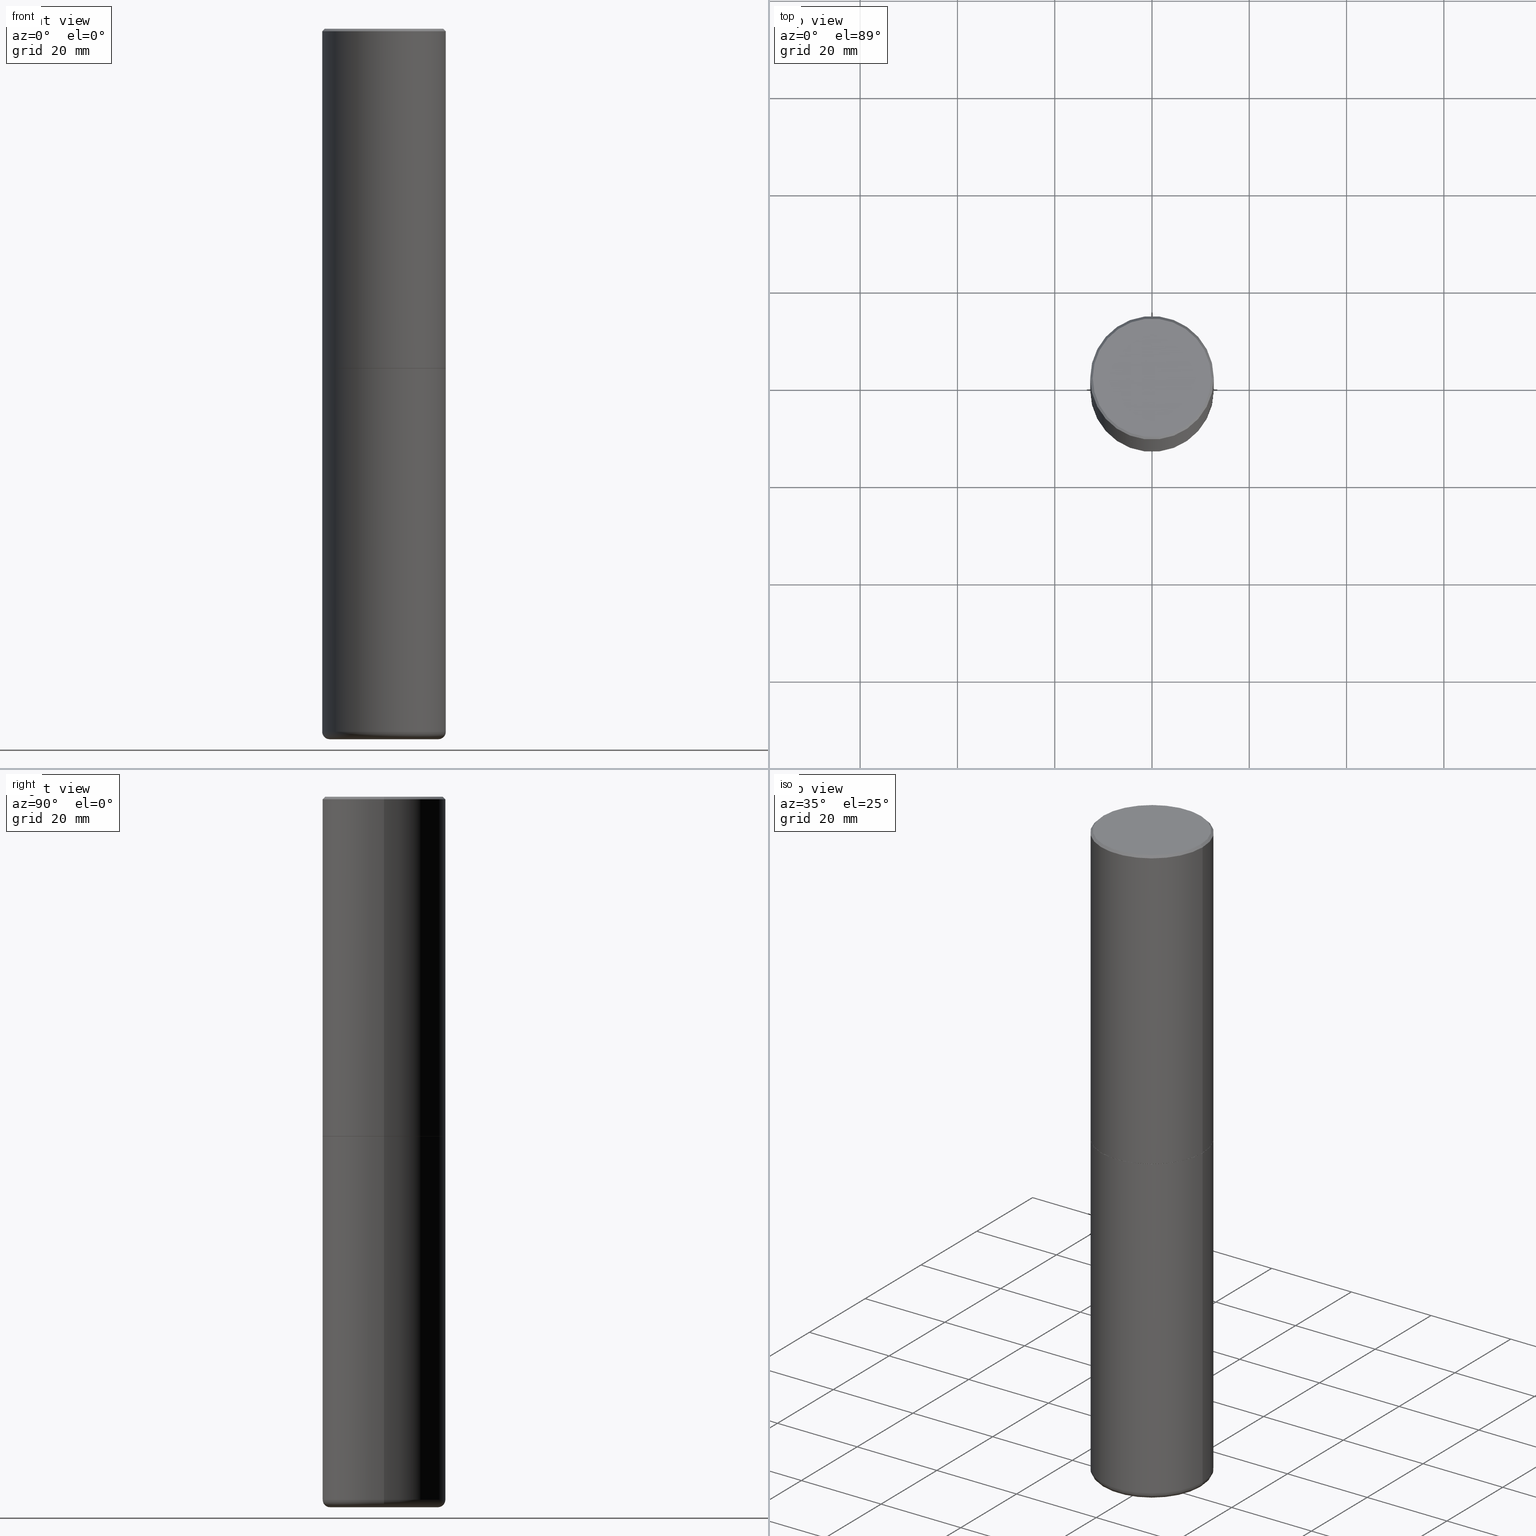
[diagram: canonical four-view strip — front | top / right | iso, engineering-drawing reading convention]
A machine part, canonical four-view strip (front | top / right | iso — engineering-drawing reading convention). The complete STEP part file that produces these views, byte-faithful:
ISO-10303-21;
HEADER;
FILE_DESCRIPTION (( 'STEP AP203' ),
    '1' );
FILE_NAME ('77485.STEP',
    '2024-05-02T19:48:35',
    ( '' ),
    ( '' ),
    'SwSTEP 2.0',
    'SolidWorks 2023',
    '' );
FILE_SCHEMA (( 'CONFIG_CONTROL_DESIGN' ));
ENDSEC;

DATA;
#1 = CARTESIAN_POINT ( 'NONE',  ( 4.890937612370299433E-31, -6.982962677686328587E-17, -0.02000000000000010797 ) ) ;
#2 = EDGE_CURVE ( 'NONE', #217, #63, #147, .T. ) ;
#3 = CYLINDRICAL_SURFACE ( 'NONE', #231, 0.5000000000000001110 ) ;
#4 = CIRCLE ( 'NONE', #146, 0.4800000000000000933 ) ;
#5 = TOROIDAL_SURFACE ( 'NONE', #239, 0.4400000000000000022, 0.06000000000000045575 ) ;
#6 = ORIENTED_EDGE ( 'NONE', *, *, #247, .F. ) ;
#7 = EDGE_LOOP ( 'NONE', ( #360, #366 ) ) ;
#8 = FACE_OUTER_BOUND ( 'NONE', #131, .T. ) ;
#9 = EDGE_CURVE ( 'NONE', #374, #42, #344, .T. ) ;
#10 = AXIS2_PLACEMENT_3D ( 'NONE', #195, #376, #229 ) ;
#11 = LOCAL_TIME ( 15, 48, 35.00000000000000000, #187 ) ;
#12 = VECTOR ( 'NONE', #33, 39.37007874015748143 ) ;
#13 = APPROVAL_ROLE ( '' ) ;
#14 = CARTESIAN_POINT ( 'NONE',  ( -0.5000000000000001110, 3.552713678800501718E-15, -2.459467545127453732E-29 ) ) ;
#15 = CARTESIAN_POINT ( 'NONE',  ( 6.725039217009123399E-29, -9.601573681818648281E-15, -2.749999999999999556 ) ) ;
#16 = ADVANCED_FACE ( 'NONE', ( #412 ), #334, .T. ) ;
#17 = EDGE_LOOP ( 'NONE', ( #150, #165, #23, #263 ) ) ;
#18 = LINE ( 'NONE', #14, #53 ) ;
#19 = PERSON_AND_ORGANIZATION ( #185, #201 ) ;
#20 = FACE_OUTER_BOUND ( 'NONE', #254, .T. ) ;
#21 = SECURITY_CLASSIFICATION_LEVEL ( 'unclassified' ) ;
#22 = PRODUCT_DEFINITION_SHAPE ( 'NONE', 'NONE',  #109 ) ;
#23 = ORIENTED_EDGE ( 'NONE', *, *, #233, .T. ) ;
#24 = PERSON_AND_ORGANIZATION ( #185, #201 ) ;
#25 = ORIENTED_EDGE ( 'NONE', *, *, #347, .F. ) ;
#26 = CARTESIAN_POINT ( 'NONE',  ( 6.725039217009123399E-29, -9.601573681818648281E-15, -2.749999999999999556 ) ) ;
#27 = DIRECTION ( 'NONE',  ( 1.000000000000000000, -6.982962677686266711E-15, 4.874852205035275907E-29 ) ) ;
#28 = CIRCLE ( 'NONE', #373, 0.5000000000000000000 ) ;
#29 = DIRECTION ( 'NONE',  ( 1.000000000000000000, -6.982962677686262766E-15, 0.000000000000000000 ) ) ;
#30 = VECTOR ( 'NONE', #170, 39.37007874015748143 ) ;
#31 = EDGE_CURVE ( 'NONE', #272, #63, #97, .T. ) ;
#32 = CARTESIAN_POINT ( 'NONE',  ( 0.5000000000000001110, -3.491481338843134539E-15, 2.438088387897968457E-29 ) ) ;
#33 = DIRECTION ( 'NONE',  ( -2.445468806185136877E-29, 3.491481338843145188E-15, 1.000000000000000000 ) ) ;
#34 = DIRECTION ( 'NONE',  ( -2.445468806185136597E-29, 3.491481338843145583E-15, 1.000000000000000000 ) ) ;
#35 = AXIS2_PLACEMENT_3D ( 'NONE', #48, #98, #232 ) ;
#36 = CC_DESIGN_APPROVAL ( #191, ( #258 ) ) ;
#37 = AXIS2_PLACEMENT_3D ( 'NONE', #15, #274, #306 ) ;
#38 = ORIENTED_EDGE ( 'NONE', *, *, #121, .F. ) ;
#39 = APPLICATION_PROTOCOL_DEFINITION ( 'international standard', 'config_control_design', 1994, #174 ) ;
#40 = UNCERTAINTY_MEASURE_WITH_UNIT (LENGTH_MEASURE( 1.000000000000000082E-05 ), #358, 'distance_accuracy_value', 'NONE');
#41 = DIRECTION ( 'NONE',  ( 1.000000000000000000, -6.982962677686266711E-15, 4.876176775795935793E-29 ) ) ;
#42 = VERTEX_POINT ( 'NONE', #392 ) ;
#43 = PERSON_AND_ORGANIZATION ( #185, #201 ) ;
#44 = AXIS2_PLACEMENT_3D ( 'NONE', #172, #176, #210 ) ;
#45 = DIRECTION ( 'NONE',  ( -2.445468806185136597E-29, 3.491481338843145583E-15, 1.000000000000000000 ) ) ;
#46 = DIRECTION ( 'NONE',  ( 0.7071067811865461294, -7.319954787623251312E-15, -0.7071067811865489050 ) ) ;
#47 = ADVANCED_FACE ( 'NONE', ( #120 ), #5, .T. ) ;
#48 = CARTESIAN_POINT ( 'NONE',  ( 1.391471750719342616E-28, -1.986652881801749632E-14, -5.689999999999999503 ) ) ;
#49 = VERTEX_POINT ( 'NONE', #342 ) ;
#50 = APPROVAL_ROLE ( '' ) ;
#51 = ORIENTED_EDGE ( 'NONE', *, *, #126, .T. ) ;
#52 = ADVANCED_BREP_SHAPE_REPRESENTATION ( '77485', ( #399, #122, #293 ), #209 ) ;
#53 = VECTOR ( 'NONE', #113, 39.37007874015748143 ) ;
#54 = ADVANCED_FACE ( 'NONE', ( #79 ), #111, .T. ) ;
#55 = APPROVAL_PERSON_ORGANIZATION ( #408, #191, #371 ) ;
#56 = DIRECTION ( 'NONE',  ( 1.000000000000000000, -6.982962677686266711E-15, 0.000000000000000000 ) ) ;
#57 = CLOSED_SHELL ( 'NONE', ( #16, #171, #228, #300, #54, #326, #264, #134 ) ) ;
#58 = APPLICATION_CONTEXT ( 'configuration controlled 3d designs of mechanical parts and assemblies' ) ;
#59 = APPROVAL_DATE_TIME ( #240, #316 ) ;
#60 = AXIS2_PLACEMENT_3D ( 'NONE', #353, #320, #29 ) ;
#61 = CIRCLE ( 'NONE', #294, 0.06000000000000045575 ) ;
#62 = DIRECTION ( 'NONE',  ( 1.000000000000000000, -6.982962677686266711E-15, 4.876176775795935793E-29 ) ) ;
#63 = VERTEX_POINT ( 'NONE', #296 ) ;
#64 = DIRECTION ( 'NONE',  ( 2.445468806185136597E-29, -3.491481338843145583E-15, -1.000000000000000000 ) ) ;
#65 = DIRECTION ( 'NONE',  ( -1.000000000000000000, 6.982962677686266711E-15, 0.000000000000000000 ) ) ;
#66 = VECTOR ( 'NONE', #332, 39.37007874015748143 ) ;
#67 = LINE ( 'NONE', #302, #66 ) ;
#68 = LOCAL_TIME ( 15, 48, 35.00000000000000000, #144 ) ;
#69 = PLANE ( 'NONE',  #200 ) ;
#70 = CARTESIAN_POINT ( 'NONE',  ( 0.4400000000000000022, -2.314852127653004609E-14, -5.750000000000000888 ) ) ;
#71 = ORIENTED_EDGE ( 'NONE', *, *, #389, .T. ) ;
#72 = EDGE_LOOP ( 'NONE', ( #205, #404, #346, #367 ) ) ;
#73 = CARTESIAN_POINT ( 'NONE',  ( 0.000000000000000000, 0.000000000000000000, 0.000000000000000000 ) ) ;
#74 = ADVANCED_FACE ( 'NONE', ( #266 ), #137, .T. ) ;
#75 = EDGE_LOOP ( 'NONE', ( #310, #253, #330, #250 ) ) ;
#76 = DIRECTION ( 'NONE',  ( 1.000000000000000000, -6.982962677686262766E-15, 0.000000000000000000 ) ) ;
#77 = CALENDAR_DATE ( 2024, 2, 5 ) ;
#78 = PERSON_AND_ORGANIZATION ( #185, #201 ) ;
#79 = FACE_OUTER_BOUND ( 'NONE', #108, .T. ) ;
#80 = ORIENTED_EDGE ( 'NONE', *, *, #2, .T. ) ;
#81 = AXIS2_PLACEMENT_3D ( 'NONE', #197, #248, #62 ) ;
#82 = ORIENTED_EDGE ( 'NONE', *, *, #242, .F. ) ;
#83 = ORIENTED_EDGE ( 'NONE', *, *, #100, .F. ) ;
#84 = DATE_AND_TIME ( #405, #88 ) ;
#85 = VERTEX_POINT ( 'NONE', #307 ) ;
#86 = AXIS2_PLACEMENT_3D ( 'NONE', #384, #382, #129 ) ;
#87 = CC_DESIGN_SECURITY_CLASSIFICATION ( #258, ( #322 ) ) ;
#88 = LOCAL_TIME ( 15, 48, 35.00000000000000000, #116 ) ;
#89 = DIRECTION ( 'NONE',  ( -2.445468806185136597E-29, 3.491481338843145583E-15, 1.000000000000000000 ) ) ;
#90 = CC_DESIGN_APPROVAL ( #208, ( #109 ) ) ;
#91 = LOCAL_TIME ( 15, 48, 35.00000000000000000, #397 ) ;
#92 = CARTESIAN_POINT ( 'NONE',  ( 1.391471750719342616E-28, -1.986652881801749632E-14, -5.689999999999999503 ) ) ;
#93 = CARTESIAN_POINT ( 'NONE',  ( 2.609628535838049452E-45, -3.725857925951117973E-31, -1.067128122525102851E-16 ) ) ;
#94 = EDGE_CURVE ( 'NONE', #141, #261, #61, .T. ) ;
#95 = CYLINDRICAL_SURFACE ( 'NONE', #81, 0.5000000000000000000 ) ;
#96 = FACE_OUTER_BOUND ( 'NONE', #308, .T. ) ;
#97 = CIRCLE ( 'NONE', #148, 0.5000000000000000000 ) ;
#98 = DIRECTION ( 'NONE',  ( -2.445468806185136597E-29, 3.491481338843145583E-15, 1.000000000000000000 ) ) ;
#99 = EDGE_LOOP ( 'NONE', ( #178, #234, #305, #161 ) ) ;
#100 = EDGE_CURVE ( 'NONE', #261, #169, #136, .T. ) ;
#101 = DIRECTION ( 'NONE',  ( -2.445468806185136597E-29, 3.491481338843145583E-15, 1.000000000000000000 ) ) ;
#102 = ORIENTED_EDGE ( 'NONE', *, *, #289, .T. ) ;
#103 = CIRCLE ( 'NONE', #60, 0.4400000000000000022 ) ;
#104 = DIRECTION ( 'NONE',  ( 1.000000000000000000, -6.982962677686269077E-15, 0.000000000000000000 ) ) ;
#105 = CARTESIAN_POINT ( 'NONE',  ( 4.089694968291764333E-29, -3.435613221068401065E-14, -5.750000000000000888 ) ) ;
#106 = ORIENTED_EDGE ( 'NONE', *, *, #414, .T. ) ;
#107 = LINE ( 'NONE', #212, #400 ) ;
#108 = EDGE_LOOP ( 'NONE', ( #380, #273, #411, #230 ) ) ;
#109 = PRODUCT_DEFINITION ( 'UNKNOWN', '', #322, #215 ) ;
#110 = APPROVAL_DATE_TIME ( #339, #191 ) ;
#111 = CYLINDRICAL_SURFACE ( 'NONE', #350, 0.5000000000000001110 ) ;
#112 = CIRCLE ( 'NONE', #157, 0.5000000000000003331 ) ;
#113 = DIRECTION ( 'NONE',  ( -2.445468806185136877E-29, 3.491481338843145188E-15, 1.000000000000000000 ) ) ;
#114 = VECTOR ( 'NONE', #393, 39.37007874015748143 ) ;
#115 = CARTESIAN_POINT ( 'NONE',  ( 4.890937612370299433E-31, -6.982962677686328587E-17, -0.02000000000000010797 ) ) ;
#116 = COORDINATED_UNIVERSAL_TIME_OFFSET ( 5, 0, .BEHIND. ) ;
#117 = EDGE_CURVE ( 'NONE', #188, #272, #107, .T. ) ;
#118 = PERSON_AND_ORGANIZATION ( #185, #201 ) ;
#119 = TOROIDAL_SURFACE ( 'NONE', #35, 0.4400000000000000022, 0.06000000000000045575 ) ;
#120 = FACE_OUTER_BOUND ( 'NONE', #72, .T. ) ;
#121 = EDGE_CURVE ( 'NONE', #85, #169, #223, .T. ) ;
#122 = MANIFOLD_SOLID_BREP ( 'Body-Move/Copy2[2]', #57 ) ;
#123 = DIRECTION ( 'NONE',  ( -2.445468806185136597E-29, 3.491481338843145583E-15, 1.000000000000000000 ) ) ;
#124 = DIRECTION ( 'NONE',  ( 1.000000000000000000, -6.982962677686265922E-15, 0.000000000000000000 ) ) ;
#125 = VECTOR ( 'NONE', #285, 39.37007874015748143 ) ;
#126 = EDGE_CURVE ( 'NONE', #313, #63, #18, .T. ) ;
#127 = FACE_OUTER_BOUND ( 'NONE', #17, .T. ) ;
#128 = FACE_OUTER_BOUND ( 'NONE', #99, .T. ) ;
#129 = DIRECTION ( 'NONE',  ( 1.000000000000000000, -6.982962677686265922E-15, 4.876176775795935793E-29 ) ) ;
#130 = DIRECTION ( 'NONE',  ( -2.445468806185136597E-29, 3.491481338843145583E-15, 1.000000000000000000 ) ) ;
#131 = EDGE_LOOP ( 'NONE', ( #106, #278, #38, #167 ) ) ;
#132 = CARTESIAN_POINT ( 'NONE',  ( 0.000000000000000000, 0.000000000000000000, 0.000000000000000000 ) ) ;
#133 = AXIS2_PLACEMENT_3D ( 'NONE', #93, #317, #27 ) ;
#134 = ADVANCED_FACE ( 'NONE', ( #20 ), #394, .F. ) ;
#135 = CARTESIAN_POINT ( 'NONE',  ( 6.725039217009123399E-29, -9.601573681818648281E-15, -2.749999999999999556 ) ) ;
#136 = LINE ( 'NONE', #270, #114 ) ;
#137 = PLANE ( 'NONE',  #194 ) ;
#138 = AXIS2_PLACEMENT_3D ( 'NONE', #301, #370, #318 ) ;
#139 = DIRECTION ( 'NONE',  ( 2.438088387897960049E-29, -3.491481338843145188E-15, -1.000000000000000000 ) ) ;
#140 = DIRECTION ( 'NONE',  ( 1.000000000000000000, -6.982962677686269077E-15, 0.000000000000000000 ) ) ;
#141 = VERTEX_POINT ( 'NONE', #315 ) ;
#142 = EDGE_LOOP ( 'NONE', ( #71, #186, #281, #388 ) ) ;
#143 = DIRECTION ( 'NONE',  ( 7.105427357601001859E-15, 1.000000000000000000, -3.491481338843145583E-15 ) ) ;
#144 = COORDINATED_UNIVERSAL_TIME_OFFSET ( 5, 0, .BEHIND. ) ;
#145 = EDGE_CURVE ( 'NONE', #49, #313, #112, .T. ) ;
#146 = AXIS2_PLACEMENT_3D ( 'NONE', #357, #34, #265 ) ;
#147 = LINE ( 'NONE', #251, #30 ) ;
#148 = AXIS2_PLACEMENT_3D ( 'NONE', #115, #363, #56 ) ;
#149 = DATE_TIME_ROLE ( 'creation_date' ) ;
#150 = ORIENTED_EDGE ( 'NONE', *, *, #331, .F. ) ;
#151 = CARTESIAN_POINT ( 'NONE',  ( 0.4400000000000000022, -2.293903239619945620E-14, -5.689999999999999503 ) ) ;
#152 = DIRECTION ( 'NONE',  ( 1.000000000000000000, -6.982962677686263555E-15, 0.000000000000000000 ) ) ;
#153 = CARTESIAN_POINT ( 'NONE',  ( 6.722593748202938917E-29, -9.598082200479805274E-15, -2.748999999999999666 ) ) ;
#154 = CARTESIAN_POINT ( 'NONE',  ( 0.5000000000000000000, -3.491481338843133355E-15, 2.438088387897967896E-29 ) ) ;
#155 = CARTESIAN_POINT ( 'NONE',  ( 6.722593748202938917E-29, -9.598082200479805274E-15, -2.748999999999999666 ) ) ;
#156 = ORIENTED_EDGE ( 'NONE', *, *, #347, .T. ) ;
#157 = AXIS2_PLACEMENT_3D ( 'NONE', #153, #220, #124 ) ;
#158 = EDGE_CURVE ( 'NONE', #313, #49, #359, .T. ) ;
#159 = PRODUCT_RELATED_PRODUCT_CATEGORY ( 'detail', '', ( #245 ) ) ;
#160 = CARTESIAN_POINT ( 'NONE',  ( -0.4800000000000000933, 3.386736898677839197E-15, -1.067128122525338523E-16 ) ) ;
#161 = ORIENTED_EDGE ( 'NONE', *, *, #2, .F. ) ;
#162 = CARTESIAN_POINT ( 'NONE',  ( 0.4989999999999999991, -1.308607205798409720E-14, -2.749999999999999556 ) ) ;
#163 = FACE_OUTER_BOUND ( 'NONE', #328, .T. ) ;
#164 = EDGE_CURVE ( 'NONE', #410, #211, #312, .T. ) ;
#165 = ORIENTED_EDGE ( 'NONE', *, *, #9, .T. ) ;
#166 = CARTESIAN_POINT ( 'NONE',  ( 1.406144563556453767E-28, -2.007601769834809252E-14, -5.750000000000000888 ) ) ;
#167 = ORIENTED_EDGE ( 'NONE', *, *, #319, .F. ) ;
#168 = PERSON_AND_ORGANIZATION ( #185, #201 ) ;
#169 = VERTEX_POINT ( 'NONE', #323 ) ;
#170 = DIRECTION ( 'NONE',  ( -0.7071067811865461294, 2.468850131082242072E-15, -0.7071067811865489050 ) ) ;
#171 = ADVANCED_FACE ( 'NONE', ( #324 ), #3, .T. ) ;
#172 = CARTESIAN_POINT ( 'NONE',  ( 1.391471750719342616E-28, -1.986652881801749632E-14, -5.689999999999999503 ) ) ;
#173 = DIRECTION ( 'NONE',  ( -1.000000000000000000, 7.105427357601001859E-15, 0.000000000000000000 ) ) ;
#174 = APPLICATION_CONTEXT ( 'configuration controlled 3d designs of mechanical parts and assemblies' ) ;
#175 = CONICAL_SURFACE ( 'NONE', #368, 0.4989999999999999991, 0.7853981633977213939 ) ;
#176 = DIRECTION ( 'NONE',  ( -2.445468806185136597E-29, 3.491481338843145583E-15, 1.000000000000000000 ) ) ;
#177 = CC_DESIGN_DATE_AND_TIME_ASSIGNMENT ( #243, #277, ( #258 ) ) ;
#178 = ORIENTED_EDGE ( 'NONE', *, *, #289, .F. ) ;
#179 = ORIENTED_EDGE ( 'NONE', *, *, #247, .T. ) ;
#180 = EDGE_CURVE ( 'NONE', #261, #211, #391, .T. ) ;
#181 = APPROVAL_STATUS ( 'not_yet_approved' ) ;
#182 = CONICAL_SURFACE ( 'NONE', #10, 0.5000000000000000000, 0.7853981633974463916 ) ;
#183 = DIRECTION ( 'NONE',  ( 1.000000000000000000, -6.982962677686267499E-15, 4.876176775795935793E-29 ) ) ;
#184 = CALENDAR_DATE ( 2024, 2, 5 ) ;
#185 = PERSON ( 'UNSPECIFIED', 'UNSPECIFIED', 'UNSPECIFIED', ('UNSPECIFIED'), ('UNSPECIFIED'), ('UNSPECIFIED') ) ;
#186 = ORIENTED_EDGE ( 'NONE', *, *, #331, .T. ) ;
#187 = COORDINATED_UNIVERSAL_TIME_OFFSET ( 5, 0, .BEHIND. ) ;
#188 = VERTEX_POINT ( 'NONE', #226 ) ;
#189 = CARTESIAN_POINT ( 'NONE',  ( 6.725039217009123399E-29, -9.601573681818648281E-15, -2.749999999999999556 ) ) ;
#190 = DIRECTION ( 'NONE',  ( -2.445468806185136597E-29, 3.491481338843145583E-15, 1.000000000000000000 ) ) ;
#191 = APPROVAL ( #181, 'UNSPECIFIED' ) ;
#192 = PERSON_AND_ORGANIZATION_ROLE ( 'creator' ) ;
#193 = AXIS2_PLACEMENT_3D ( 'NONE', #151, #246, #286 ) ;
#194 = AXIS2_PLACEMENT_3D ( 'NONE', #105, #139, #337 ) ;
#195 = CARTESIAN_POINT ( 'NONE',  ( 4.890937612370299433E-31, -6.982962677686328587E-17, -0.02000000000000010797 ) ) ;
#196 = DIRECTION ( 'NONE',  ( -2.445468806185136597E-29, 3.491481338843145583E-15, 1.000000000000000000 ) ) ;
#197 = CARTESIAN_POINT ( 'NONE',  ( 0.000000000000000000, 0.000000000000000000, 0.000000000000000000 ) ) ;
#198 = CARTESIAN_POINT ( 'NONE',  ( 6.725039217009123399E-29, -9.601573681818648281E-15, -2.749999999999999556 ) ) ;
#199 = EDGE_LOOP ( 'NONE', ( #343, #179 ) ) ;
#200 = AXIS2_PLACEMENT_3D ( 'NONE', #26, #204, #282 ) ;
#201 = ORGANIZATION ( 'UNSPECIFIED', 'UNSPECIFIED', '' ) ;
#202 = CARTESIAN_POINT ( 'NONE',  ( 6.725039217009123399E-29, -9.601573681818648281E-15, -2.749999999999999556 ) ) ;
#203 = EDGE_CURVE ( 'NONE', #410, #141, #103, .T. ) ;
#204 = DIRECTION ( 'NONE',  ( 2.438088387897960049E-29, -3.491481338843145188E-15, -1.000000000000000000 ) ) ;
#205 = ORIENTED_EDGE ( 'NONE', *, *, #94, .F. ) ;
#206 = DIRECTION ( 'NONE',  ( -2.445468806185136597E-29, 3.491481338843145583E-15, 1.000000000000000000 ) ) ;
#207 = CYLINDRICAL_SURFACE ( 'NONE', #355, 0.5000000000000000000 ) ;
#208 = APPROVAL ( #295, 'UNSPECIFIED' ) ;
#209 =( GEOMETRIC_REPRESENTATION_CONTEXT ( 3 ) GLOBAL_UNCERTAINTY_ASSIGNED_CONTEXT ( ( #40 ) ) GLOBAL_UNIT_ASSIGNED_CONTEXT ( ( #358, #325, #269 ) ) REPRESENTATION_CONTEXT ( 'NONE', 'WORKASPACE' ) );
#210 = DIRECTION ( 'NONE',  ( 1.000000000000000000, -6.982962677686263555E-15, 0.000000000000000000 ) ) ;
#211 = VERTEX_POINT ( 'NONE', #413 ) ;
#212 = CARTESIAN_POINT ( 'NONE',  ( 0.5000000000000000000, -3.500078625662629079E-15, -0.02000000000000010797 ) ) ;
#213 = PERSON_AND_ORGANIZATION_ROLE ( 'classification_officer' ) ;
#214 = CARTESIAN_POINT ( 'NONE',  ( -0.4400000000000000022, -1.674014078067305588E-14, -5.689999999999999503 ) ) ;
#215 = DESIGN_CONTEXT ( 'detailed design', #58, 'design' ) ;
#216 = EDGE_CURVE ( 'NONE', #63, #272, #257, .T. ) ;
#217 = VERTEX_POINT ( 'NONE', #160 ) ;
#218 = DIRECTION ( 'NONE',  ( 1.000000000000000000, -6.982962677686265922E-15, 0.000000000000000000 ) ) ;
#219 = CARTESIAN_POINT ( 'NONE',  ( 0.000000000000000000, 0.000000000000000000, 0.000000000000000000 ) ) ;
#220 = DIRECTION ( 'NONE',  ( -2.445468806185136597E-29, 3.491481338843145583E-15, 1.000000000000000000 ) ) ;
#221 = APPROVAL_PERSON_ORGANIZATION ( #168, #208, #13 ) ;
#222 = CC_DESIGN_APPROVAL ( #316, ( #322 ) ) ;
#223 = CIRCLE ( 'NONE', #37, 0.5000000000000000000 ) ;
#224 = LINE ( 'NONE', #154, #125 ) ;
#225 = CARTESIAN_POINT ( 'NONE',  ( -0.5000000000000003331, -1.281242234827828821E-15, -2.748999999999999666 ) ) ;
#226 = CARTESIAN_POINT ( 'NONE',  ( 0.4800000000000000933, -3.396558832296482493E-15, -1.067128122524866809E-16 ) ) ;
#227 = AXIS2_PLACEMENT_3D ( 'NONE', #166, #361, #76 ) ;
#228 = ADVANCED_FACE ( 'NONE', ( #128 ), #268, .T. ) ;
#229 = DIRECTION ( 'NONE',  ( -1.000000000000000000, 6.982962677686266711E-15, 0.000000000000000000 ) ) ;
#230 = ORIENTED_EDGE ( 'NONE', *, *, #216, .F. ) ;
#231 = AXIS2_PLACEMENT_3D ( 'NONE', #219, #416, #249 ) ;
#232 = DIRECTION ( 'NONE',  ( 1.000000000000000000, -6.982962677686264344E-15, 4.883557194083111780E-29 ) ) ;
#233 = EDGE_CURVE ( 'NONE', #42, #49, #356, .T. ) ;
#234 = ORIENTED_EDGE ( 'NONE', *, *, #117, .T. ) ;
#235 = PERSON_AND_ORGANIZATION_ROLE ( 'design_owner' ) ;
#236 = ORIENTED_EDGE ( 'NONE', *, *, #180, .T. ) ;
#237 = PERSON_AND_ORGANIZATION_ROLE ( 'design_supplier' ) ;
#238 = CARTESIAN_POINT ( 'NONE',  ( 0.000000000000000000, 0.000000000000000000, 0.000000000000000000 ) ) ;
#239 = AXIS2_PLACEMENT_3D ( 'NONE', #351, #196, #398 ) ;
#240 = DATE_AND_TIME ( #345, #68 ) ;
#241 = DIRECTION ( 'NONE',  ( -2.445468806185136597E-29, 3.491481338843145583E-15, 1.000000000000000000 ) ) ;
#242 = EDGE_CURVE ( 'NONE', #49, #272, #252, .T. ) ;
#243 = DATE_AND_TIME ( #184, #11 ) ;
#244 = APPROVAL_PERSON_ORGANIZATION ( #19, #316, #50 ) ;
#245 = PRODUCT ( '77485', '77485', '', ( #327 ) ) ;
#246 = DIRECTION ( 'NONE',  ( -6.982962677686266711E-15, -1.000000000000000000, 3.491481338843145583E-15 ) ) ;
#247 = EDGE_CURVE ( 'NONE', #169, #85, #28, .T. ) ;
#248 = DIRECTION ( 'NONE',  ( -2.445468806185136597E-29, 3.491481338843145583E-15, 1.000000000000000000 ) ) ;
#249 = DIRECTION ( 'NONE',  ( 1.000000000000000000, -6.982962677686267499E-15, 4.876176775795935793E-29 ) ) ;
#250 = ORIENTED_EDGE ( 'NONE', *, *, #164, .F. ) ;
#251 = CARTESIAN_POINT ( 'NONE',  ( -0.5000000000000000000, 3.421651712066270057E-15, -0.02000000000000010797 ) ) ;
#252 = LINE ( 'NONE', #32, #12 ) ;
#253 = ORIENTED_EDGE ( 'NONE', *, *, #94, .T. ) ;
#254 = EDGE_LOOP ( 'NONE', ( #156, #102 ) ) ;
#255 = FACE_OUTER_BOUND ( 'NONE', #362, .T. ) ;
#256 = ORIENTED_EDGE ( 'NONE', *, *, #216, .T. ) ;
#257 = CIRCLE ( 'NONE', #298, 0.5000000000000000000 ) ;
#258 = SECURITY_CLASSIFICATION ( '', '', #21 ) ;
#259 = AXIS2_PLACEMENT_3D ( 'NONE', #189, #89, #140 ) ;
#260 = CARTESIAN_POINT ( 'NONE',  ( -0.5000000000000002220, -1.631381513921699223E-14, -5.689999999999999503 ) ) ;
#261 = VERTEX_POINT ( 'NONE', #260 ) ;
#262 = DIRECTION ( 'NONE',  ( 0.000000000000000000, 0.000000000000000000, 1.000000000000000000 ) ) ;
#263 = ORIENTED_EDGE ( 'NONE', *, *, #158, .F. ) ;
#264 = ADVANCED_FACE ( 'NONE', ( #255 ), #378, .F. ) ;
#265 = DIRECTION ( 'NONE',  ( 1.000000000000000000, -6.982962677686266711E-15, 4.874852205035275907E-29 ) ) ;
#266 = FACE_OUTER_BOUND ( 'NONE', #7, .T. ) ;
#267 = CARTESIAN_POINT ( 'NONE',  ( 6.725039217009123399E-29, -9.601573681818648281E-15, -2.749999999999999556 ) ) ;
#268 = CONICAL_SURFACE ( 'NONE', #348, 0.5000000000000000000, 0.7853981633974463916 ) ;
#269 =( NAMED_UNIT ( * ) SI_UNIT ( $, .STERADIAN. ) SOLID_ANGLE_UNIT ( ) );
#270 = CARTESIAN_POINT ( 'NONE',  ( -0.5000000000000000000, 3.552713678800500929E-15, -2.459467545127452891E-29 ) ) ;
#271 = COORDINATED_UNIVERSAL_TIME_OFFSET ( 5, 0, .BEHIND. ) ;
#272 = VERTEX_POINT ( 'NONE', #381 ) ;
#273 = ORIENTED_EDGE ( 'NONE', *, *, #158, .T. ) ;
#274 = DIRECTION ( 'NONE',  ( -2.445468806185136597E-29, 3.491481338843145583E-15, 1.000000000000000000 ) ) ;
#275 = CC_DESIGN_PERSON_AND_ORGANIZATION_ASSIGNMENT ( #401, #213, ( #258 ) ) ;
#276 = LOCAL_TIME ( 15, 48, 35.00000000000000000, #271 ) ;
#277 = DATE_TIME_ROLE ( 'classification_date' ) ;
#278 = ORIENTED_EDGE ( 'NONE', *, *, #100, .T. ) ;
#279 = APPROVAL_STATUS ( 'not_yet_approved' ) ;
#280 = ADVANCED_FACE ( 'NONE', ( #163 ), #95, .T. ) ;
#281 = ORIENTED_EDGE ( 'NONE', *, *, #145, .F. ) ;
#282 = DIRECTION ( 'NONE',  ( -1.000000000000000000, 6.982962677686265922E-15, -4.876176775795935793E-29 ) ) ;
#283 = ORIENTED_EDGE ( 'NONE', *, *, #145, .T. ) ;
#284 = DIRECTION ( 'NONE',  ( 1.000000000000000000, -6.982962677686269077E-15, 0.000000000000000000 ) ) ;
#285 = DIRECTION ( 'NONE',  ( -2.445468806185136877E-29, 3.491481338843145188E-15, 1.000000000000000000 ) ) ;
#286 = DIRECTION ( 'NONE',  ( 1.000000000000000000, -6.982962677686280121E-15, 0.000000000000000000 ) ) ;
#287 = AXIS2_PLACEMENT_3D ( 'NONE', #92, #130, #152 ) ;
#288 = CLOSED_SHELL ( 'NONE', ( #340, #377, #309, #280, #47, #74 ) ) ;
#289 = EDGE_CURVE ( 'NONE', #188, #217, #372, .T. ) ;
#290 = DIRECTION ( 'NONE',  ( -2.445468806185136597E-29, 3.491481338843145583E-15, 1.000000000000000000 ) ) ;
#291 = DIRECTION ( 'NONE',  ( 1.000000000000000000, -6.982962677686266711E-15, 0.000000000000000000 ) ) ;
#292 = DIRECTION ( 'NONE',  ( 0.7071067811867406405, -2.468850131084279700E-15, 0.7071067811863543939 ) ) ;
#293 = AXIS2_PLACEMENT_3D ( 'NONE', #73, #262, #387 ) ;
#294 = AXIS2_PLACEMENT_3D ( 'NONE', #214, #143, #173 ) ;
#295 = APPROVAL_STATUS ( 'not_yet_approved' ) ;
#296 = CARTESIAN_POINT ( 'NONE',  ( -0.5000000000000000000, 3.421651712066270057E-15, -0.02000000000000010797 ) ) ;
#297 = LENGTH_MEASURE_WITH_UNIT ( LENGTH_MEASURE( 0.02539999999999999897 ), #329 );
#298 = AXIS2_PLACEMENT_3D ( 'NONE', #352, #417, #291 ) ;
#299 = AXIS2_PLACEMENT_3D ( 'NONE', #267, #45, #284 ) ;
#300 = ADVANCED_FACE ( 'NONE', ( #96 ), #182, .T. ) ;
#301 = CARTESIAN_POINT ( 'NONE',  ( 3.351822085289408337E-15, 0.4800000000000000933, -1.729267448770965221E-15 ) ) ;
#302 = CARTESIAN_POINT ( 'NONE',  ( -0.4989999999999999991, -6.055965430375748360E-15, -2.749999999999999556 ) ) ;
#303 = ORIENTED_EDGE ( 'NONE', *, *, #31, .F. ) ;
#304 = CC_DESIGN_PERSON_AND_ORGANIZATION_ASSIGNMENT ( #24, #192, ( #322 ) ) ;
#305 = ORIENTED_EDGE ( 'NONE', *, *, #31, .T. ) ;
#306 = DIRECTION ( 'NONE',  ( 1.000000000000000000, -6.982962677686266711E-15, 0.000000000000000000 ) ) ;
#307 = CARTESIAN_POINT ( 'NONE',  ( 0.5000000000000000000, -1.309305502066178164E-14, -2.749999999999999556 ) ) ;
#308 = EDGE_LOOP ( 'NONE', ( #385, #25, #80, #256 ) ) ;
#309 = ADVANCED_FACE ( 'NONE', ( #314 ), #69, .F. ) ;
#310 = ORIENTED_EDGE ( 'NONE', *, *, #203, .T. ) ;
#311 = CALENDAR_DATE ( 2024, 2, 5 ) ;
#312 = CIRCLE ( 'NONE', #193, 0.06000000000000045575 ) ;
#313 = VERTEX_POINT ( 'NONE', #225 ) ;
#314 = FACE_OUTER_BOUND ( 'NONE', #199, .T. ) ;
#315 = CARTESIAN_POINT ( 'NONE',  ( -0.4400000000000000022, -1.663172240011032058E-14, -5.750000000000000888 ) ) ;
#316 = APPROVAL ( #279, 'UNSPECIFIED' ) ;
#317 = DIRECTION ( 'NONE',  ( -2.445468806185136597E-29, 3.491481338843145583E-15, 1.000000000000000000 ) ) ;
#318 = DIRECTION ( 'NONE',  ( -1.000000000000000000, 6.982962677686265922E-15, -4.876176775795935793E-29 ) ) ;
#319 = EDGE_CURVE ( 'NONE', #211, #85, #224, .T. ) ;
#320 = DIRECTION ( 'NONE',  ( -2.445468806185136597E-29, 3.491481338843145583E-15, 1.000000000000000000 ) ) ;
#321 = AXIS2_PLACEMENT_3D ( 'NONE', #155, #190, #218 ) ;
#322 = PRODUCT_DEFINITION_FORMATION_WITH_SPECIFIED_SOURCE ( 'ANY', '', #245, .NOT_KNOWN. ) ;
#323 = CARTESIAN_POINT ( 'NONE',  ( -0.5000000000000000000, -1.118133757111757137E-14, -2.749999999999999556 ) ) ;
#324 = FACE_OUTER_BOUND ( 'NONE', #338, .T. ) ;
#325 =( NAMED_UNIT ( * ) PLANE_ANGLE_UNIT ( ) SI_UNIT ( $, .RADIAN. ) );
#326 = ADVANCED_FACE ( 'NONE', ( #127 ), #175, .T. ) ;
#327 = MECHANICAL_CONTEXT ( 'NONE', #174, 'mechanical' ) ;
#328 = EDGE_LOOP ( 'NONE', ( #83, #236, #403, #6 ) ) ;
#329 =( LENGTH_UNIT ( ) NAMED_UNIT ( * ) SI_UNIT ( $, .METRE. ) );
#330 = ORIENTED_EDGE ( 'NONE', *, *, #414, .F. ) ;
#331 = EDGE_CURVE ( 'NONE', #374, #313, #67, .T. ) ;
#332 = DIRECTION ( 'NONE',  ( -0.7071067811867406405, 7.493145998871051513E-15, 0.7071067811863543939 ) ) ;
#333 = CIRCLE ( 'NONE', #44, 0.4999999999999999445 ) ;
#334 = CONICAL_SURFACE ( 'NONE', #259, 0.4989999999999999991, 0.7853981633977213939 ) ;
#335 = CARTESIAN_POINT ( 'NONE',  ( -0.4989999999999999991, -6.050666976027525169E-15, -2.749999999999999556 ) ) ;
#336 = ORIENTED_EDGE ( 'NONE', *, *, #389, .F. ) ;
#337 = DIRECTION ( 'NONE',  ( -1.000000000000000000, 6.982962677686265922E-15, -4.876176775795935793E-29 ) ) ;
#338 = EDGE_LOOP ( 'NONE', ( #283, #51, #303, #82 ) ) ;
#339 = DATE_AND_TIME ( #311, #91 ) ;
#340 = ADVANCED_FACE ( 'NONE', ( #8 ), #207, .T. ) ;
#341 = VECTOR ( 'NONE', #292, 39.37007874015748143 ) ;
#342 = CARTESIAN_POINT ( 'NONE',  ( 0.5000000000000003331, -1.308956353932294179E-14, -2.748999999999999666 ) ) ;
#343 = ORIENTED_EDGE ( 'NONE', *, *, #121, .T. ) ;
#344 = CIRCLE ( 'NONE', #299, 0.4989999999999999991 ) ;
#345 = CALENDAR_DATE ( 2024, 2, 5 ) ;
#346 = ORIENTED_EDGE ( 'NONE', *, *, #164, .T. ) ;
#347 = EDGE_CURVE ( 'NONE', #217, #188, #4, .T. ) ;
#348 = AXIS2_PLACEMENT_3D ( 'NONE', #1, #64, #65 ) ;
#349 = DIRECTION ( 'NONE',  ( 1.000000000000000000, -6.982962677686266711E-15, 0.000000000000000000 ) ) ;
#350 = AXIS2_PLACEMENT_3D ( 'NONE', #238, #241, #183 ) ;
#351 = CARTESIAN_POINT ( 'NONE',  ( 1.391471750719342616E-28, -1.986652881801749632E-14, -5.689999999999999503 ) ) ;
#352 = CARTESIAN_POINT ( 'NONE',  ( 4.890937612370299433E-31, -6.982962677686328587E-17, -0.02000000000000010797 ) ) ;
#353 = CARTESIAN_POINT ( 'NONE',  ( 1.406144563556453767E-28, -2.007601769834809252E-14, -5.750000000000000888 ) ) ;
#354 = DIRECTION ( 'NONE',  ( 1.000000000000000000, -6.982962677686269077E-15, 0.000000000000000000 ) ) ;
#355 = AXIS2_PLACEMENT_3D ( 'NONE', #132, #206, #41 ) ;
#356 = LINE ( 'NONE', #162, #341 ) ;
#357 = CARTESIAN_POINT ( 'NONE',  ( 2.609628535838049452E-45, -3.725857925951117973E-31, -1.067128122525102851E-16 ) ) ;
#358 =( CONVERSION_BASED_UNIT ( 'INCH', #297 ) LENGTH_UNIT ( ) NAMED_UNIT ( #418 ) );
#359 = CIRCLE ( 'NONE', #321, 0.5000000000000003331 ) ;
#360 = ORIENTED_EDGE ( 'NONE', *, *, #203, .F. ) ;
#361 = DIRECTION ( 'NONE',  ( -2.445468806185136597E-29, 3.491481338843145583E-15, 1.000000000000000000 ) ) ;
#362 = EDGE_LOOP ( 'NONE', ( #336, #396 ) ) ;
#363 = DIRECTION ( 'NONE',  ( -2.445468806185136597E-29, 3.491481338843145583E-15, 1.000000000000000000 ) ) ;
#364 = APPLICATION_PROTOCOL_DEFINITION ( 'international standard', 'config_control_design', 1994, #58 ) ;
#365 = APPROVAL_DATE_TIME ( #395, #208 ) ;
#366 = ORIENTED_EDGE ( 'NONE', *, *, #406, .F. ) ;
#367 = ORIENTED_EDGE ( 'NONE', *, *, #180, .F. ) ;
#368 = AXIS2_PLACEMENT_3D ( 'NONE', #198, #290, #354 ) ;
#369 = SHAPE_DEFINITION_REPRESENTATION ( #22, #52 ) ;
#370 = DIRECTION ( 'NONE',  ( 2.438088387897960049E-29, -3.491481338843145188E-15, -1.000000000000000000 ) ) ;
#371 = APPROVAL_ROLE ( '' ) ;
#372 = CIRCLE ( 'NONE', #133, 0.4800000000000000933 ) ;
#373 = AXIS2_PLACEMENT_3D ( 'NONE', #202, #123, #349 ) ;
#374 = VERTEX_POINT ( 'NONE', #335 ) ;
#375 = CC_DESIGN_DATE_AND_TIME_ASSIGNMENT ( #84, #149, ( #109 ) ) ;
#376 = DIRECTION ( 'NONE',  ( 2.445468806185136597E-29, -3.491481338843145583E-15, -1.000000000000000000 ) ) ;
#377 = ADVANCED_FACE ( 'NONE', ( #390 ), #119, .T. ) ;
#378 = PLANE ( 'NONE',  #86 ) ;
#379 = CC_DESIGN_PERSON_AND_ORGANIZATION_ASSIGNMENT ( #78, #402, ( #109 ) ) ;
#380 = ORIENTED_EDGE ( 'NONE', *, *, #126, .F. ) ;
#381 = CARTESIAN_POINT ( 'NONE',  ( 0.5000000000000000000, -3.500078625662629079E-15, -0.02000000000000010797 ) ) ;
#382 = DIRECTION ( 'NONE',  ( -2.438088387897960049E-29, 3.491481338843145188E-15, 1.000000000000000000 ) ) ;
#383 = CIRCLE ( 'NONE', #415, 0.4989999999999999991 ) ;
#384 = CARTESIAN_POINT ( 'NONE',  ( 6.725039217009123399E-29, -9.601573681818648281E-15, -2.749999999999999556 ) ) ;
#385 = ORIENTED_EDGE ( 'NONE', *, *, #117, .F. ) ;
#386 = CC_DESIGN_PERSON_AND_ORGANIZATION_ASSIGNMENT ( #43, #235, ( #245 ) ) ;
#387 = DIRECTION ( 'NONE',  ( 1.000000000000000000, 0.000000000000000000, 0.000000000000000000 ) ) ;
#388 = ORIENTED_EDGE ( 'NONE', *, *, #233, .F. ) ;
#389 = EDGE_CURVE ( 'NONE', #42, #374, #383, .T. ) ;
#390 = FACE_OUTER_BOUND ( 'NONE', #75, .T. ) ;
#391 = CIRCLE ( 'NONE', #287, 0.4999999999999999445 ) ;
#392 = CARTESIAN_POINT ( 'NONE',  ( 0.4989999999999999991, -1.308607205798409720E-14, -2.749999999999999556 ) ) ;
#393 = DIRECTION ( 'NONE',  ( -2.445468806185136877E-29, 3.491481338843145188E-15, 1.000000000000000000 ) ) ;
#394 = PLANE ( 'NONE',  #138 ) ;
#395 = DATE_AND_TIME ( #77, #276 ) ;
#396 = ORIENTED_EDGE ( 'NONE', *, *, #9, .F. ) ;
#397 = COORDINATED_UNIVERSAL_TIME_OFFSET ( 5, 0, .BEHIND. ) ;
#398 = DIRECTION ( 'NONE',  ( 1.000000000000000000, -6.982962677686264344E-15, 4.883557194083111780E-29 ) ) ;
#399 = MANIFOLD_SOLID_BREP ( 'Body-Move/Copy2[1]', #288 ) ;
#400 = VECTOR ( 'NONE', #46, 39.37007874015748143 ) ;
#401 = PERSON_AND_ORGANIZATION ( #185, #201 ) ;
#402 = PERSON_AND_ORGANIZATION_ROLE ( 'creator' ) ;
#403 = ORIENTED_EDGE ( 'NONE', *, *, #319, .T. ) ;
#404 = ORIENTED_EDGE ( 'NONE', *, *, #406, .T. ) ;
#405 = CALENDAR_DATE ( 2024, 2, 5 ) ;
#406 = EDGE_CURVE ( 'NONE', #141, #410, #407, .T. ) ;
#407 = CIRCLE ( 'NONE', #227, 0.4400000000000000022 ) ;
#408 = PERSON_AND_ORGANIZATION ( #185, #201 ) ;
#409 = CC_DESIGN_PERSON_AND_ORGANIZATION_ASSIGNMENT ( #118, #237, ( #322 ) ) ;
#410 = VERTEX_POINT ( 'NONE', #70 ) ;
#411 = ORIENTED_EDGE ( 'NONE', *, *, #242, .T. ) ;
#412 = FACE_OUTER_BOUND ( 'NONE', #142, .T. ) ;
#413 = CARTESIAN_POINT ( 'NONE',  ( 0.5000000000000002220, -2.335801015686062967E-14, -5.689999999999999503 ) ) ;
#414 = EDGE_CURVE ( 'NONE', #211, #261, #333, .T. ) ;
#415 = AXIS2_PLACEMENT_3D ( 'NONE', #135, #101, #104 ) ;
#416 = DIRECTION ( 'NONE',  ( -2.445468806185136597E-29, 3.491481338843145583E-15, 1.000000000000000000 ) ) ;
#417 = DIRECTION ( 'NONE',  ( -2.445468806185136597E-29, 3.491481338843145583E-15, 1.000000000000000000 ) ) ;
#418 = DIMENSIONAL_EXPONENTS ( 1.000000000000000000, 0.000000000000000000, 0.000000000000000000, 0.000000000000000000, 0.000000000000000000, 0.000000000000000000, 0.000000000000000000 ) ;
ENDSEC;
END-ISO-10303-21;
